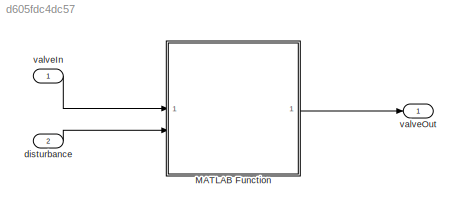
MODEL slx_d605fdc4dc57
KIND model
CONFIG AbsTol = auto
CONFIG EnableMultiTasking = off
CONFIG FixedStep = 1e-5
CONFIG MaxStep = auto
CONFIG MinStep = auto
CONFIG RelTol = 1e-3
CONFIG SampleTimeConstraint = Unconstrained
CONFIG SolverName = VariableStepAuto
CONFIG StartTime = 0.0
CONFIG StopTime = 10.0
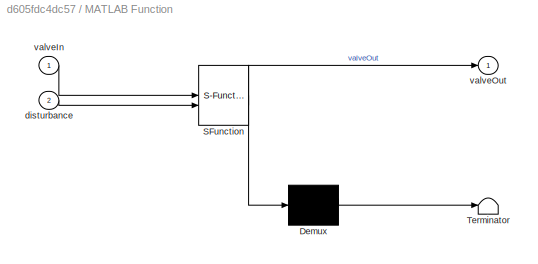
BLOCK [SubSystem] MATLAB Function
  ErrorFcn = Stateflow.Translate.translate
  PermitHierarchicalResolution = ExplicitOnly
  SFBlockType = MATLAB Function
  TreatAsAtomicUnit = on
BLOCK [Demux] MATLAB Function/ Demux 
  Outputs = 1
BLOCK [S-Function] MATLAB Function/ SFunction 
  EnableBusSupport = off
  FunctionName = sf_sfun
  PortCounts = [2 2]
  SFcnIsStateOwnerBlock = off
  SFunctionDeploymentMode = off
  Tag = Stateflow S-Function 2
BLOCK [Terminator] MATLAB Function/ Terminator 
BLOCK [Inport] MATLAB Function/disturbance
  Port = 2
BLOCK [Inport] MATLAB Function/valveIn
BLOCK [Outport] MATLAB Function/valveOut
BLOCK [Inport] disturbance
  Port = 2
BLOCK [Inport] valveIn
BLOCK [Outport] valveOut
LINE MATLAB Function:1 -> valveOut:1
LINE disturbance:1 -> MATLAB Function:2
LINE valveIn:1 -> MATLAB Function:1
CHART MATLAB Function states=1 transitions=1
  STATE_LABEL 'eML_blk_kernel()'
  STATE_LABEL 'SCRIPT:\nfunction valveOut = nonlinear_gate(valveIn, disturbance)\n    % Parameters\n    eps = 1e-3;\n    dl = -0.014; dr = 0.014;\n    kl = 0.0276; kr = 0.04;\n    Sl = -0.004; Sr = 0.006;\n    \n    % voltage-speed characteristic\n    valveOut = zeros(1);\n    valveIn = valveIn + disturbance;\n    softplus_l = eps * log(1 + exp((dl - valveIn) / eps));\n    softplus_r = eps * log(1 + exp((valveIn - dr) / eps...<+184ch>'
CHART  states=0 transitions=0
